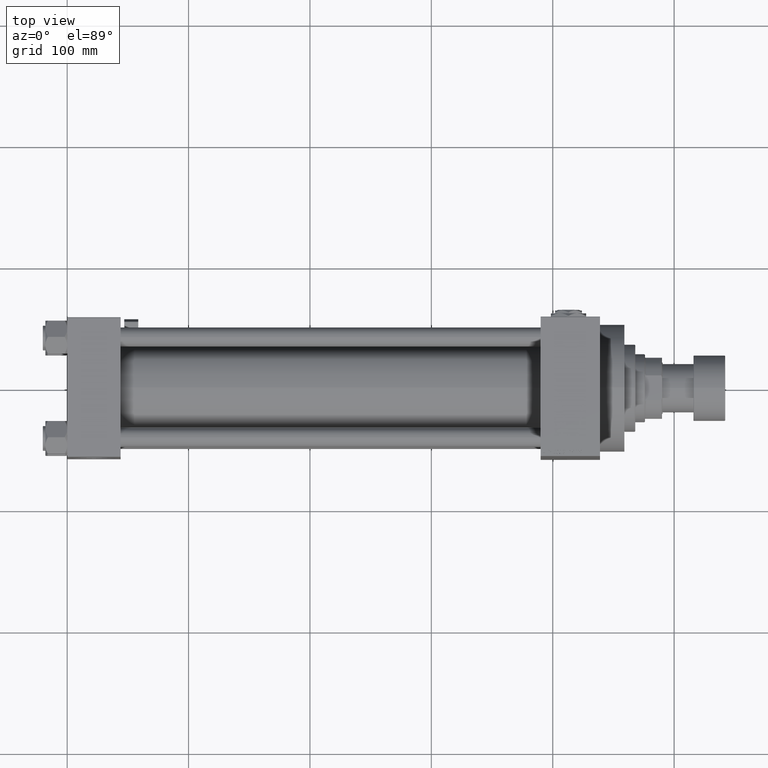
[diagram: clean part render]
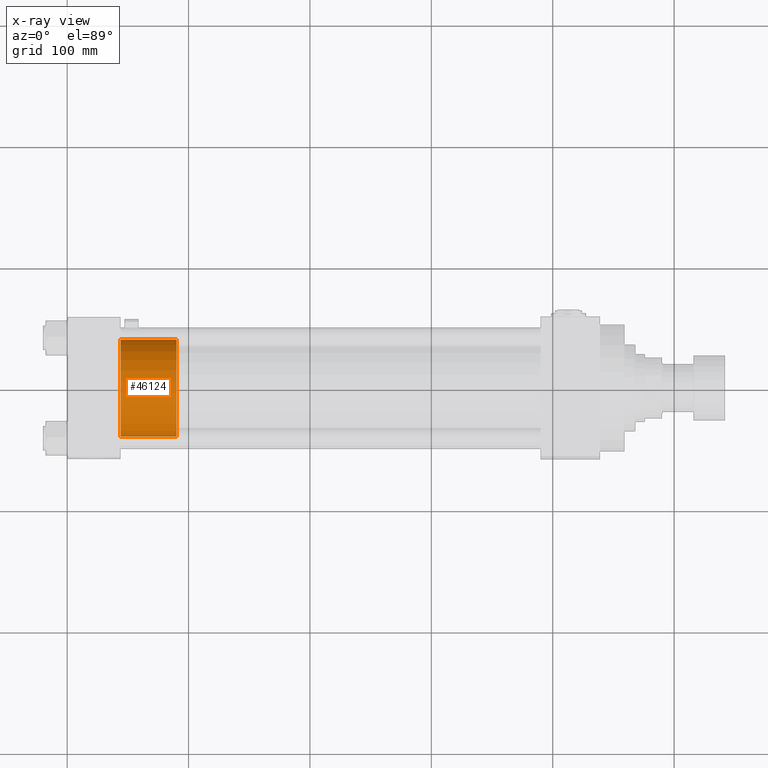
[diagram: x-ray — body ghosted, one internal face saturated and labeled with its STEP entity id]
A machine part, top view, then the same camera in x-ray: the body is ghosted and one INTERNAL B-rep face — a face not visible from any outside direction — is saturated and labeled: STEP entity #46124.
In plain terms, the highlighted cylindrical surface (partial cylindrical patch) has radius 40 mm, axis along (-1, 0, 0).
Its self-contained STEP definition (entity closure, byte-faithful):
#2602 = CARTESIAN_POINT ( 'NONE',  ( 40.00000000000000000, 4.898587196589413026E-15, 0.000000000000000000 ) ) ;
#3043 = ORIENTED_EDGE ( 'NONE', *, *, #12304, .F. ) ;
#6337 = ORIENTED_EDGE ( 'NONE', *, *, #37105, .T. ) ;
#6560 = LINE ( 'NONE', #25711, #16984 ) ;
#7077 = EDGE_CURVE ( 'NONE', #21399, #9436, #35204, .T. ) ;
#8233 = AXIS2_PLACEMENT_3D ( 'NONE', #16292, #24165, #47738 ) ;
#9436 = VERTEX_POINT ( 'NONE', #2602 ) ;
#10492 = DIRECTION ( 'NONE',  ( -0.000000000000000000, -0.000000000000000000, -1.000000000000000000 ) ) ;
#11032 = AXIS2_PLACEMENT_3D ( 'NONE', #20794, #20274, #36790 ) ;
#12304 = EDGE_CURVE ( 'NONE', #17239, #21399, #34197, .T. ) ;
#13754 = AXIS2_PLACEMENT_3D ( 'NONE', #27628, #31832, #23705 ) ;
#14026 = VECTOR ( 'NONE', #15262, 1000.000000000000000 ) ;
#15262 = DIRECTION ( 'NONE',  ( -0.000000000000000000, -0.000000000000000000, -1.000000000000000000 ) ) ;
#15831 = CYLINDRICAL_SURFACE ( 'NONE', #13754, 40.00000000000000000 ) ;
#16292 = CARTESIAN_POINT ( 'NONE',  ( 0.000000000000000000, 0.000000000000000000, 46.00000000000000000 ) ) ;
#16984 = VECTOR ( 'NONE', #10492, 1000.000000000000000 ) ;
#17239 = VERTEX_POINT ( 'NONE', #29629 ) ;
#20020 = FACE_OUTER_BOUND ( 'NONE', #32833, .T. ) ;
#20274 = DIRECTION ( 'NONE',  ( 0.000000000000000000, 0.000000000000000000, 1.000000000000000000 ) ) ;
#20794 = CARTESIAN_POINT ( 'NONE',  ( 0.000000000000000000, 0.000000000000000000, 0.000000000000000000 ) ) ;
#21292 = ORIENTED_EDGE ( 'NONE', *, *, #39733, .T. ) ;
#21399 = VERTEX_POINT ( 'NONE', #30907 ) ;
#23705 = DIRECTION ( 'NONE',  ( -1.000000000000000000, 0.000000000000000000, 0.000000000000000000 ) ) ;
#24165 = DIRECTION ( 'NONE',  ( 0.000000000000000000, 0.000000000000000000, 1.000000000000000000 ) ) ;
#24940 = CARTESIAN_POINT ( 'NONE',  ( -40.00000000000000000, 0.000000000000000000, 0.000000000000000000 ) ) ;
#25711 = CARTESIAN_POINT ( 'NONE',  ( -40.00000000000000000, 0.000000000000000000, 46.00000000000000000 ) ) ;
#27628 = CARTESIAN_POINT ( 'NONE',  ( 0.000000000000000000, 0.000000000000000000, 46.00000000000000000 ) ) ;
#29434 = CIRCLE ( 'NONE', #11032, 40.00000000000000000 ) ;
#29629 = CARTESIAN_POINT ( 'NONE',  ( -40.00000000000000000, 0.000000000000000000, 46.00000000000000000 ) ) ;
#30907 = CARTESIAN_POINT ( 'NONE',  ( 40.00000000000000000, 4.898587196589413026E-15, 46.00000000000000000 ) ) ;
#31832 = DIRECTION ( 'NONE',  ( -0.000000000000000000, -0.000000000000000000, -1.000000000000000000 ) ) ;
#32833 = EDGE_LOOP ( 'NONE', ( #51548, #3043, #21292, #6337 ) ) ;
#34197 = CIRCLE ( 'NONE', #8233, 40.00000000000000000 ) ;
#35204 = LINE ( 'NONE', #51150, #14026 ) ;
#36790 = DIRECTION ( 'NONE',  ( 1.000000000000000000, 0.000000000000000000, 0.000000000000000000 ) ) ;
#37105 = EDGE_CURVE ( 'NONE', #40554, #9436, #29434, .T. ) ;
#39733 = EDGE_CURVE ( 'NONE', #17239, #40554, #6560, .T. ) ;
#40554 = VERTEX_POINT ( 'NONE', #24940 ) ;
#46124 = ADVANCED_FACE ( 'NONE', ( #20020 ), #15831, .T. ) ;
#47738 = DIRECTION ( 'NONE',  ( 1.000000000000000000, 0.000000000000000000, 0.000000000000000000 ) ) ;
#51150 = CARTESIAN_POINT ( 'NONE',  ( 40.00000000000000000, 4.898587196589413026E-15, 46.00000000000000000 ) ) ;
#51548 = ORIENTED_EDGE ( 'NONE', *, *, #7077, .F. ) ;